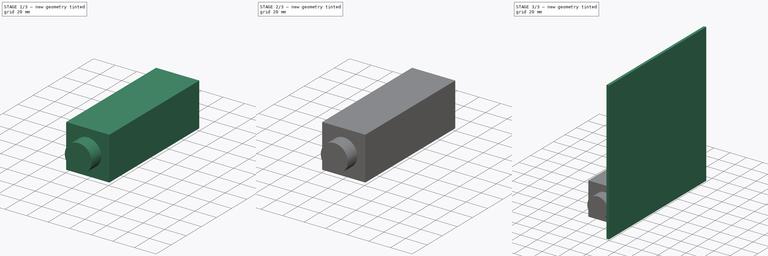
[diagram: build sequence overview — one tinted view per stage of 3, left to right]
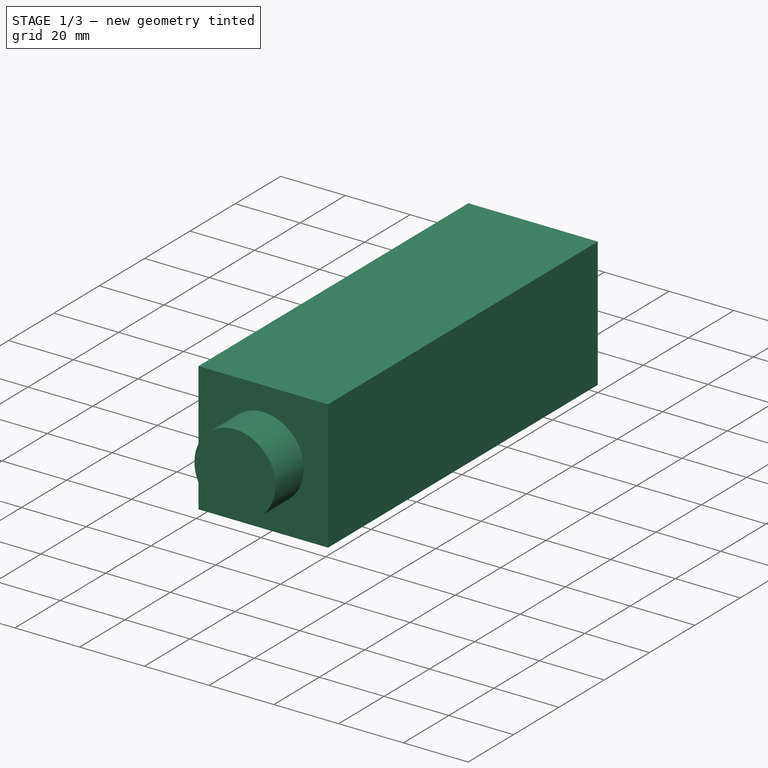
[diagram: stage 1 of 3 — iso view after this stage's code; geometry added in this stage tinted green]
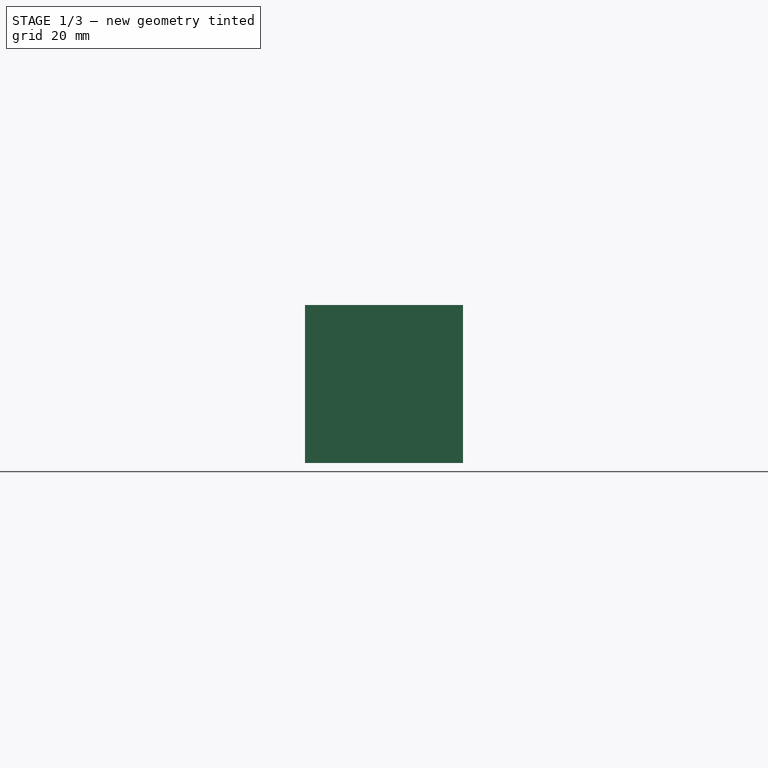
[diagram: stage 1 of 3 — front view after this stage's code; geometry added in this stage tinted green]
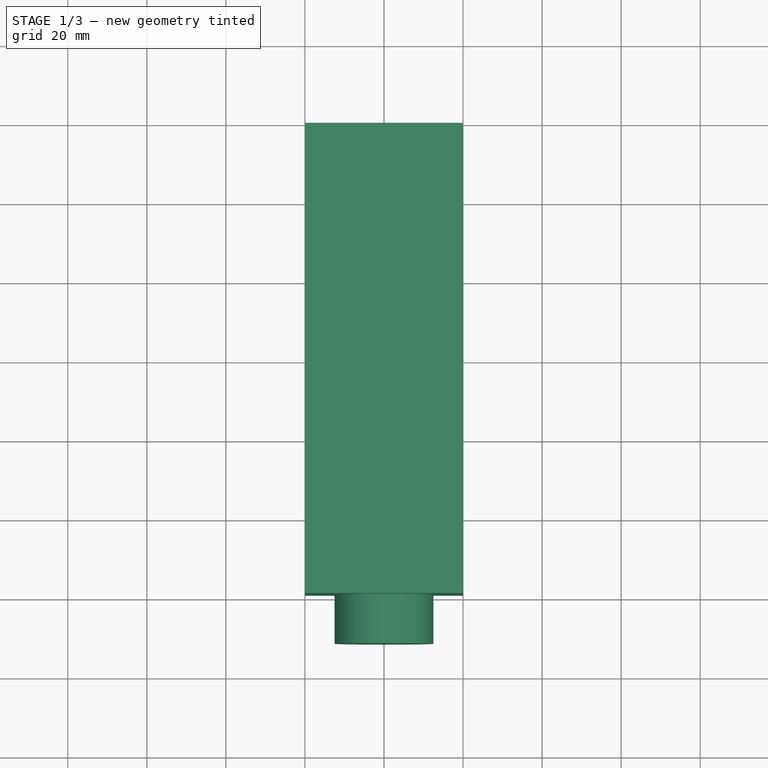
[diagram: stage 1 of 3 — top view after this stage's code; geometry added in this stage tinted green]
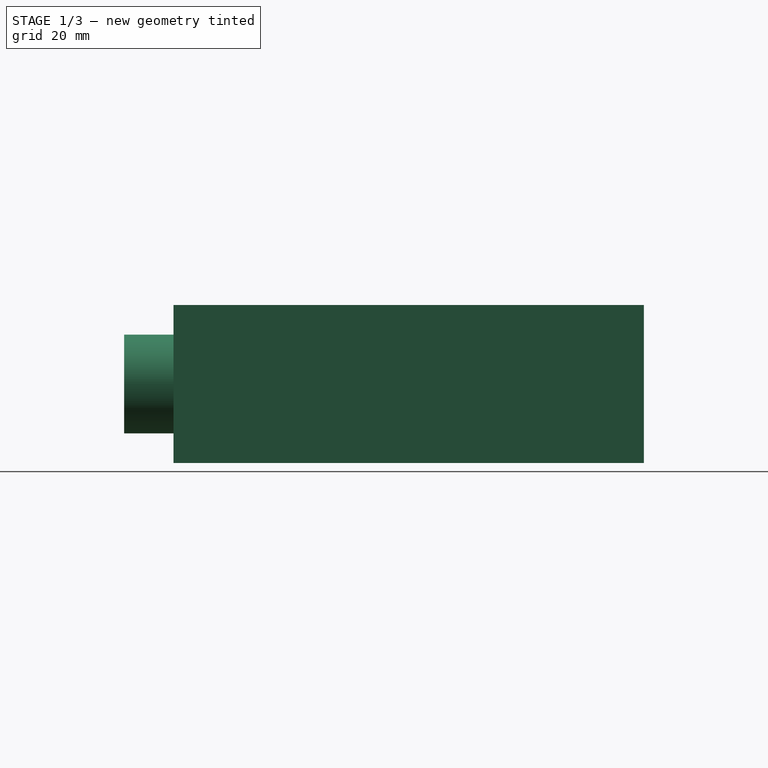
[diagram: stage 1 of 3 — right view after this stage's code; geometry added in this stage tinted green]
FCSTD DOCUMENT  (FreeCAD 0.19R)
Label: Recogedor
License: All rights reserved
LicenseURL: http://en.wikipedia.org/wiki/All_rights_reserved
objects: Sketcher::SketchObject×5, PartDesign::Pad×3, PartDesign::Pocket×2, PartDesign::Body×1
note: 16 computed .brp shape members not serialized (recipe doc carries the construction recipe); baked Part::Feature solids carry a one-line shape summary decoded from their .brp

FEATURE [Sketcher::SketchObject] Sketch
  FullyConstrained = true
  MapMode = 5
  Placement = pos=(0,0,0) rot=(1,0,0;1.5708rad)
  Support = -> [XZ_Plane]
  sketch-geometry (6):
    g0: LineSegment StartX=-20 StartY=-20 StartZ=0 EndX=20 EndY=-20 EndZ=0
    g1: LineSegment StartX=20 StartY=-20 StartZ=0 EndX=20 EndY=20 EndZ=0
    g2: LineSegment StartX=20 StartY=20 StartZ=0 EndX=-20 EndY=20 EndZ=0
    g3: LineSegment StartX=-20 StartY=20 StartZ=0 EndX=-20 EndY=-20 EndZ=0
    g4: LineSegment StartX=0 StartY=0 StartZ=0 EndX=20 EndY=20 EndZ=0
    g5: LineSegment StartX=0 StartY=0 StartZ=0 EndX=-20 EndY=-20 EndZ=0
  constraints (16):
    c: Coincident(g0,g1)
    c: Coincident(g1,g2)
    c: Coincident(g2,g3)
    c: Coincident(g3,g0)
    c: Horizontal(g0)
    c: Horizontal(g2)
    c: Vertical(g1)
    c: Vertical(g3)
    c: Coincident(g4,g-1)
    c: Coincident(g4,g1)
    c: Coincident(g5,g-1)
    c: Coincident(g5,g0)
    c: Parallel(g4,g5)
    c: Equal(g5,g4)
    c: DistanceX(g2,g2) = 40
    c: DistanceY(g3,g3) = 40
FEATURE [PartDesign::Pad] Pad
  Direction = (1,1,1)
  Length = 119
  Length2 = 100
  Placement = pos=(0,0,0) rot=(1,0,0;1.5708rad)
  Profile = -> Sketch
  Refine = true
  Type = 0
FEATURE [Sketcher::SketchObject] Sketch001
  ExternalGeometry = -> [Pad]
  FullyConstrained = true
  MapMode = 5
  Placement = pos=(0,-119,7.93e-14) rot=(1,0,0;1.5708rad)
  Support = -> [Pad]
  sketch-geometry (3):
    g0: LineSegment StartX=-20 StartY=-20 StartZ=0 EndX=20 EndY=20 EndZ=0
    g1: LineSegment StartX=-20 StartY=20 StartZ=0 EndX=20 EndY=-20 EndZ=0
    g2: Circle CenterX=0 CenterY=0 CenterZ=0 NormalX=0 NormalY=0 NormalZ=1 AngleXU=0 Radius=12.5
  constraints (6):
    c: Coincident(g0,g-6)
    c: Coincident(g0,g-5)
    c: Coincident(g1,g-4)
    c: Coincident(g1,g-6)
    c: Coincident(g2,g-1)
    c: Radius(g2) = 12.5
FEATURE [PartDesign::Pad] Pad001
  BaseFeature = -> Pad
  Direction = (1,1,1)
  Length = 12.5
  Length2 = 100
  Placement = pos=(0,0,0) rot=(1,0,0;1.5708rad)
  Profile = -> Sketch001
  Refine = true
  Type = 0
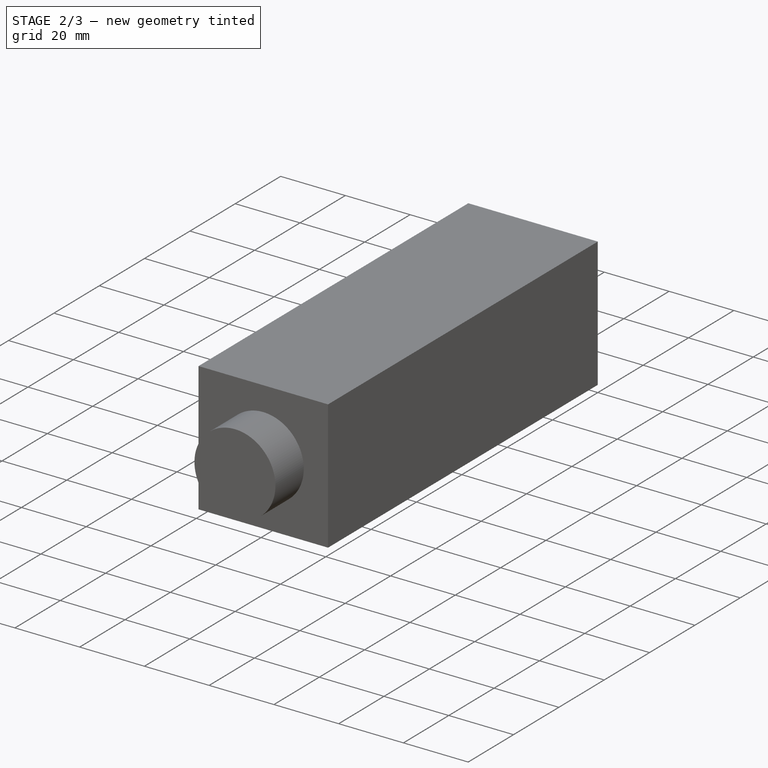
[diagram: stage 2 of 3 — iso view after this stage's code; geometry added in this stage tinted green]
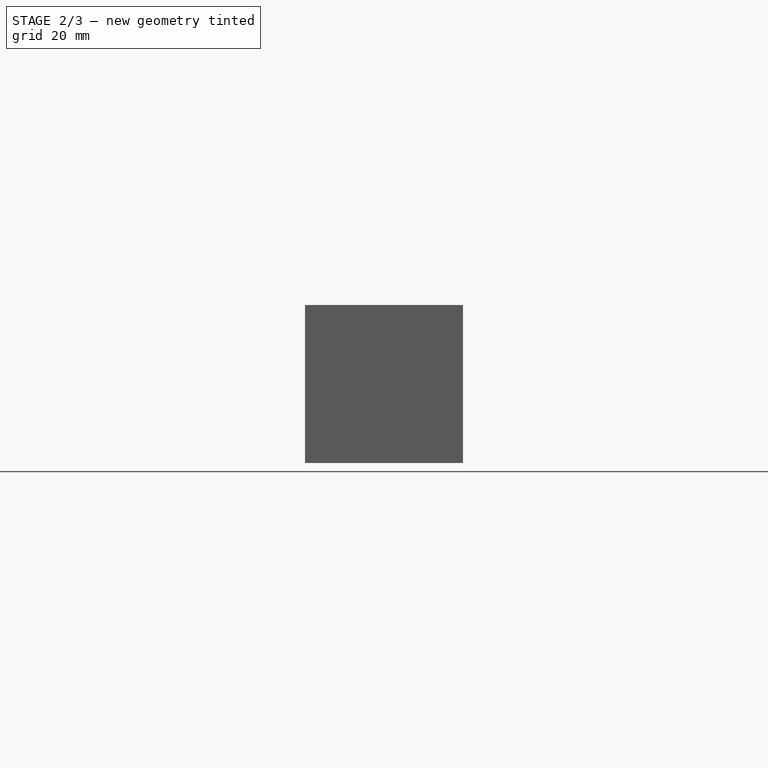
[diagram: stage 2 of 3 — front view after this stage's code; geometry added in this stage tinted green]
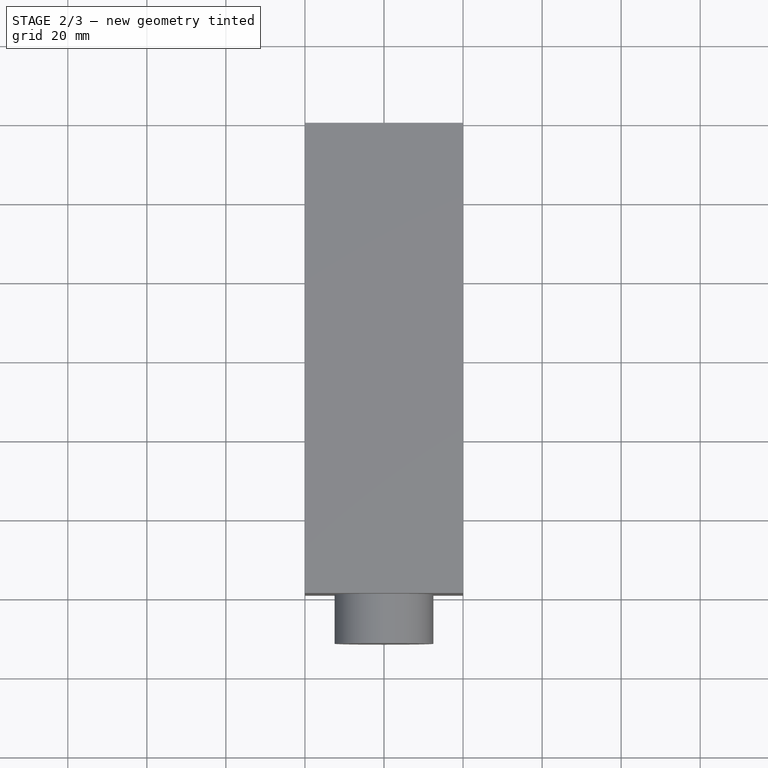
[diagram: stage 2 of 3 — top view after this stage's code; geometry added in this stage tinted green]
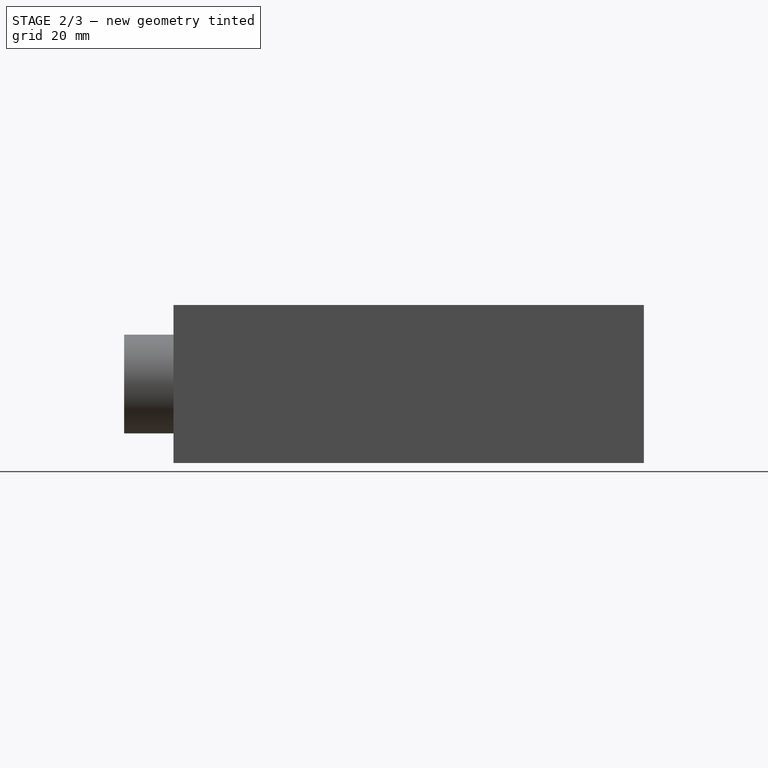
[diagram: stage 2 of 3 — right view after this stage's code; geometry added in this stage tinted green]
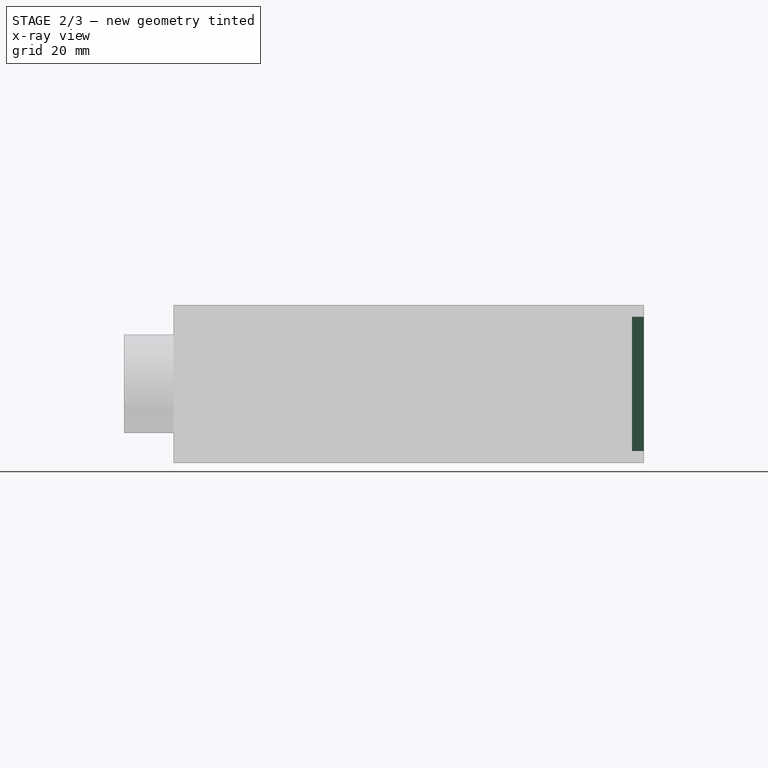
[diagram: stage 2 of 3 — x-ray composite at the right view; earlier geometry ghosted, this stage's added geometry solid]
FEATURE [Sketcher::SketchObject] Sketch002
  ExternalGeometry = -> [Pad001]
  FullyConstrained = false
  MapMode = 5
  Placement = pos=(0,0,0) rot=(-1,0,0;1.5708rad)
  Support = -> [Pad001]
  sketch-geometry (8):
    g0: LineSegment StartX=-4.5 StartY=-17 StartZ=0 EndX=4.5 EndY=-17 EndZ=0
    g1: LineSegment StartX=4.5 StartY=-17 StartZ=0 EndX=4.5 EndY=17 EndZ=0
    g2: LineSegment StartX=4.5 StartY=17 StartZ=0 EndX=-4.5 EndY=17 EndZ=0
    g3: LineSegment StartX=-4.5 StartY=17 StartZ=0 EndX=-4.5 EndY=-17 EndZ=0
    g4: LineSegment StartX=0.08107 StartY=17 StartZ=0 EndX=0.08107 EndY=20 EndZ=0
    g5: LineSegment StartX=0.108259 StartY=-17 StartZ=0 EndX=0.108259 EndY=-20 EndZ=0
    g6: LineSegment StartX=-4.5 StartY=-0.242158 StartZ=0 EndX=-20 EndY=-0.242158 EndZ=0
    g7: LineSegment StartX=4.5 StartY=-0.242158 StartZ=0 EndX=20 EndY=-0.242158 EndZ=0
  constraints (24):
    c: Coincident(g0,g1)
    c: Coincident(g1,g2)
    c: Coincident(g2,g3)
    c: Coincident(g3,g0)
    c: Horizontal(g0)
    c: Horizontal(g2)
    c: Vertical(g1)
    c: Vertical(g3)
    c: DistanceY(g3,g3) = 34
    c: DistanceX(g2,g2) = 9
    c: PointOnObject(g4,g2)
    c: PointOnObject(g4,g-3)
    c: Vertical(g4)
    c: PointOnObject(g5,g0)
    c: PointOnObject(g5,g-6)
    c: Vertical(g5)
    c: Equal(g5,g4)
    c: PointOnObject(g6,g3)
    c: PointOnObject(g6,g-4)
    c: Horizontal(g6)
    c: PointOnObject(g7,g1)
    c: PointOnObject(g7,g-5)
    c: Horizontal(g7)
    c: Equal(g6,g7)
FEATURE [PartDesign::Pocket] Pocket
  BaseFeature = -> Pad001
  Length = 3
  Length2 = 100
  Placement = pos=(0,0,0) rot=(1,0,0;1.5708rad)
  Profile = -> Sketch002
  Refine = true
  Type = 0
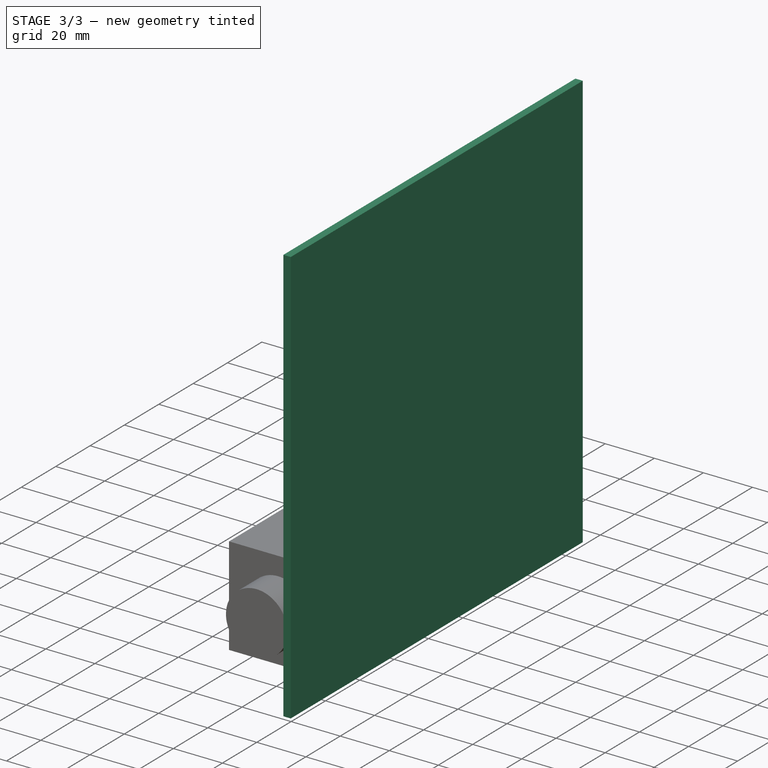
[diagram: stage 3 of 3 — iso view after this stage's code; geometry added in this stage tinted green]
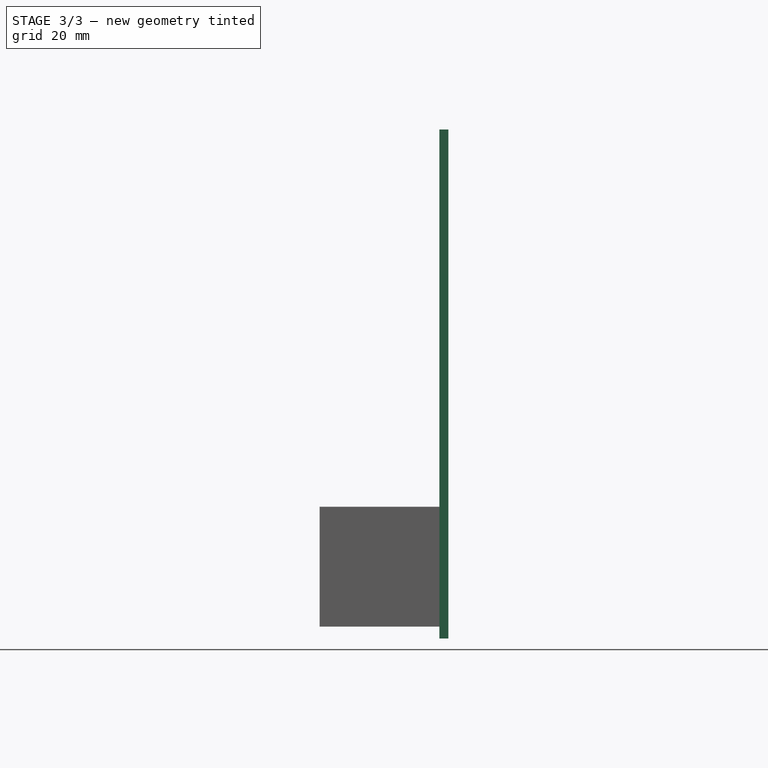
[diagram: stage 3 of 3 — front view after this stage's code; geometry added in this stage tinted green]
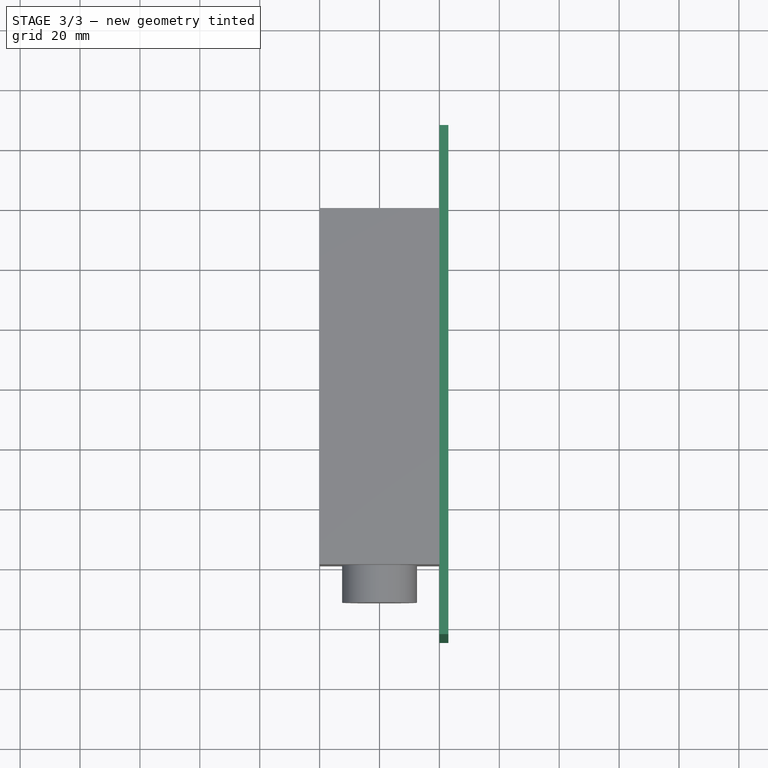
[diagram: stage 3 of 3 — top view after this stage's code; geometry added in this stage tinted green]
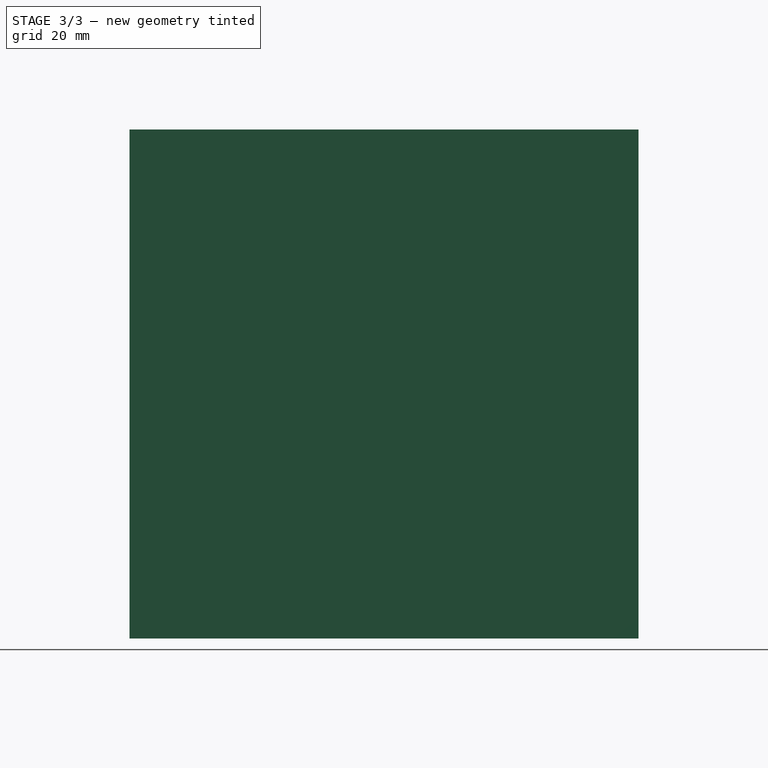
[diagram: stage 3 of 3 — right view after this stage's code; geometry added in this stage tinted green]
FEATURE [Sketcher::SketchObject] Sketch003
  ExternalGeometry = -> [Pocket]
  FullyConstrained = false
  MapMode = 5
  Placement = pos=(0,-3,4.7e-15) rot=(-1,0,0;1.5708rad)
  Support = -> [Pocket]
  sketch-geometry (5):
    g0: LineSegment StartX=-0.543643 StartY=-6 StartZ=0 EndX=-0.543643 EndY=6 EndZ=0
    g1: LineSegment StartX=-0.543643 StartY=6 StartZ=0 EndX=-0.543643 EndY=17 EndZ=0
    g2: LineSegment StartX=-0.543643 StartY=-6 StartZ=0 EndX=-0.543643 EndY=-17 EndZ=0
    g3: Circle CenterX=0 CenterY=5.9739 CenterZ=0 NormalX=0 NormalY=0 NormalZ=1 AngleXU=0 Radius=1
    g4: Circle CenterX=0 CenterY=-6.00258 CenterZ=0 NormalX=0 NormalY=0 NormalZ=1 AngleXU=0 Radius=1
  constraints (14):
    c: DistanceY(g-4,g-4) = 34
    c: Vertical(g0)
    c: Coincident(g1,g0)
    c: PointOnObject(g1,g-6)
    c: Vertical(g1)
    c: DistanceY(g0,g0) = 12
    c: Coincident(g2,g0)
    c: PointOnObject(g2,g-5)
    c: Vertical(g2)
    c: Equal(g2,g1)
    c: PointOnObject(g3,g-2)
    c: Radius(g3) = 1
    c: PointOnObject(g4,g-2)
    c: Radius(g4) = 1
FEATURE [PartDesign::Pocket] Pocket001
  BaseFeature = -> Pocket
  Length = 8
  Length2 = 100
  Placement = pos=(0,0,0) rot=(1,0,0;1.5708rad)
  Profile = -> Sketch003
  Refine = true
  Type = 0
FEATURE [Sketcher::SketchObject] Sketch004
  ExternalGeometry = -> [Pocket001]
  FullyConstrained = false
  MapMode = 5
  Placement = pos=(20,0,0) rot=(0.707107,0,0.707107;3.14159rad)
  Support = -> [Pocket001]
  sketch-geometry (7):
    g0: LineSegment StartX=-24 StartY=-25.5 StartZ=0 EndX=146 EndY=-25.5 EndZ=0
    g1: LineSegment StartX=146 StartY=-25.5 StartZ=0 EndX=146 EndY=144.5 EndZ=0
    g2: LineSegment StartX=146 StartY=144.5 StartZ=0 EndX=-24 EndY=144.5 EndZ=0
    g3: LineSegment StartX=-24 StartY=144.5 StartZ=0 EndX=-24 EndY=-25.5 EndZ=0
    g4: LineSegment StartX=-4.08462 StartY=119 StartZ=0 EndX=-4.08462 EndY=144.5 EndZ=0
    g5: LineSegment StartX=-6.86987 StartY=1.37e-14 StartZ=0 EndX=-6.86987 EndY=-25.5 EndZ=0
    g6: LineSegment StartX=-20 StartY=78.1488 StartZ=0 EndX=-24 EndY=78.1488 EndZ=0
  constraints (21):
    c: Coincident(g0,g1)
    c: Coincident(g1,g2)
    c: Coincident(g2,g3)
    c: Coincident(g3,g0)
    c: Horizontal(g0)
    c: Horizontal(g2)
    c: Vertical(g1)
    c: Vertical(g3)
    c: DistanceY(g1,g1) = 170
    c: DistanceX(g0,g0) = 170
    c: PointOnObject(g4,g-3)
    c: PointOnObject(g4,g2)
    c: Vertical(g4)
    c: PointOnObject(g5,g-6)
    c: PointOnObject(g5,g0)
    c: Vertical(g5)
    c: Equal(g5,g4)
    c: PointOnObject(g6,g-4)
    c: PointOnObject(g6,g3)
    c: Horizontal(g6)
    c: DistanceX(g6,g6) = 4
FEATURE [PartDesign::Pad] Pad002
  BaseFeature = -> Pocket001
  Direction = (1,1,1)
  Length = 3
  Length2 = 100
  Placement = pos=(0,0,0) rot=(1,0,0;1.5708rad)
  Profile = -> Sketch004
  Refine = true
  Type = 0
FEATURE [PartDesign::Body] Body
  Group = -> [Sketch,Pad,Sketch001,Pad001,Sketch002,Pocket,Sketch003,Pocket001,Sketch004,Pad002]
  Origin = -> Origin
  Tip = -> Pad002
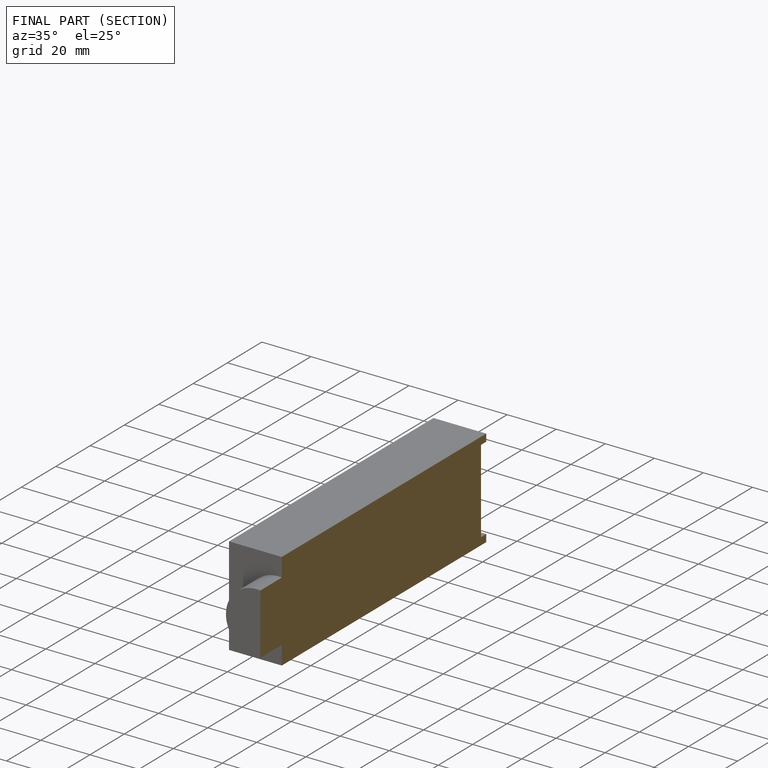
[diagram: finished part — half-section view (interior)]
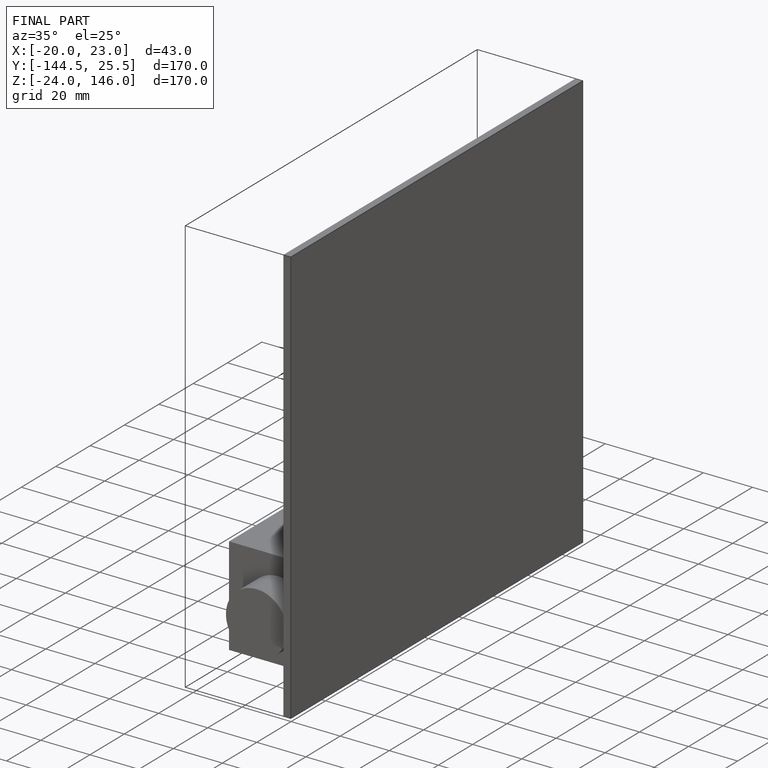
[diagram: finished part — iso view with bounding-box wireframe]
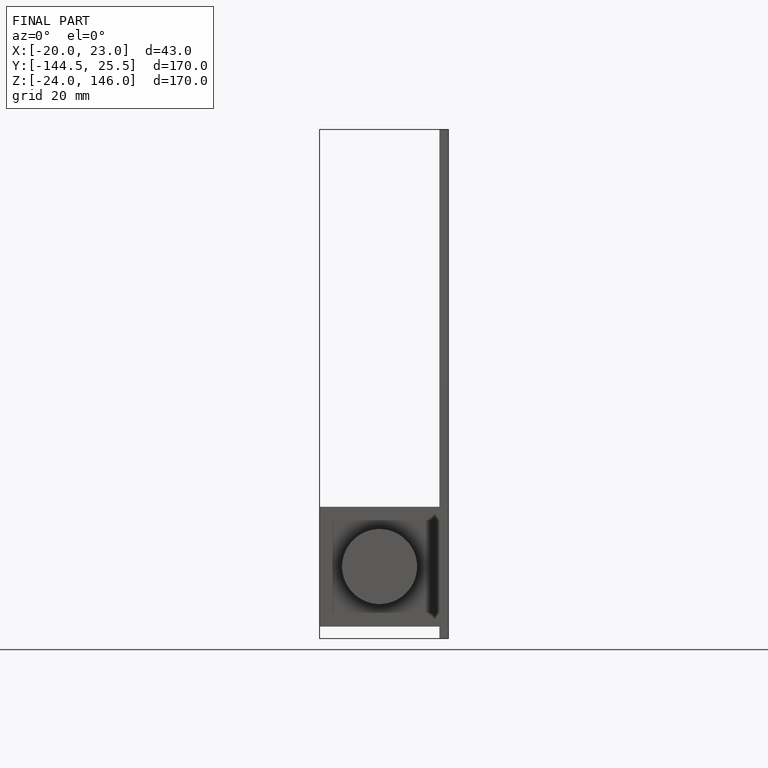
[diagram: finished part — front view with bounding-box wireframe]
